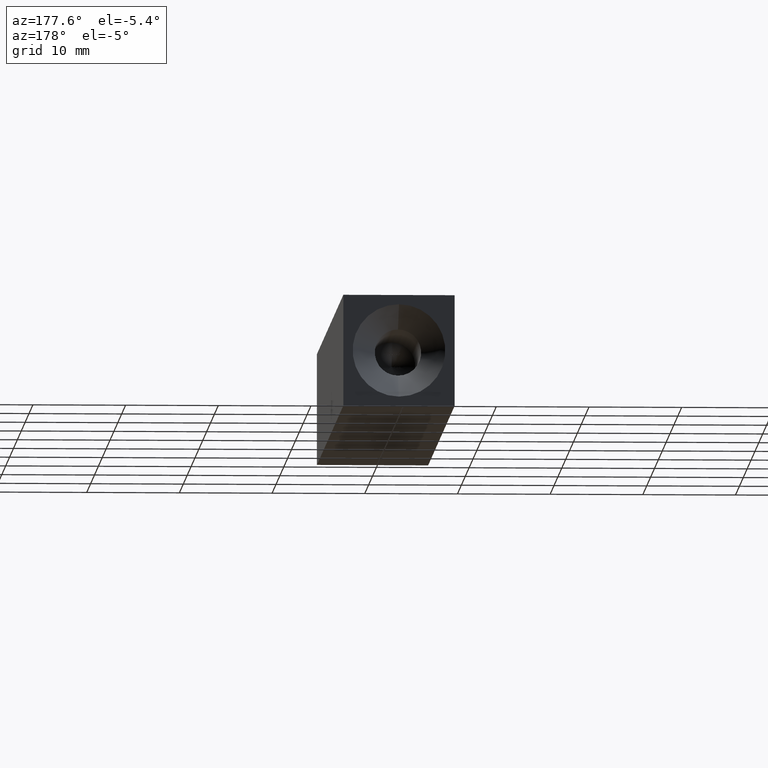
[diagram: clean part render]
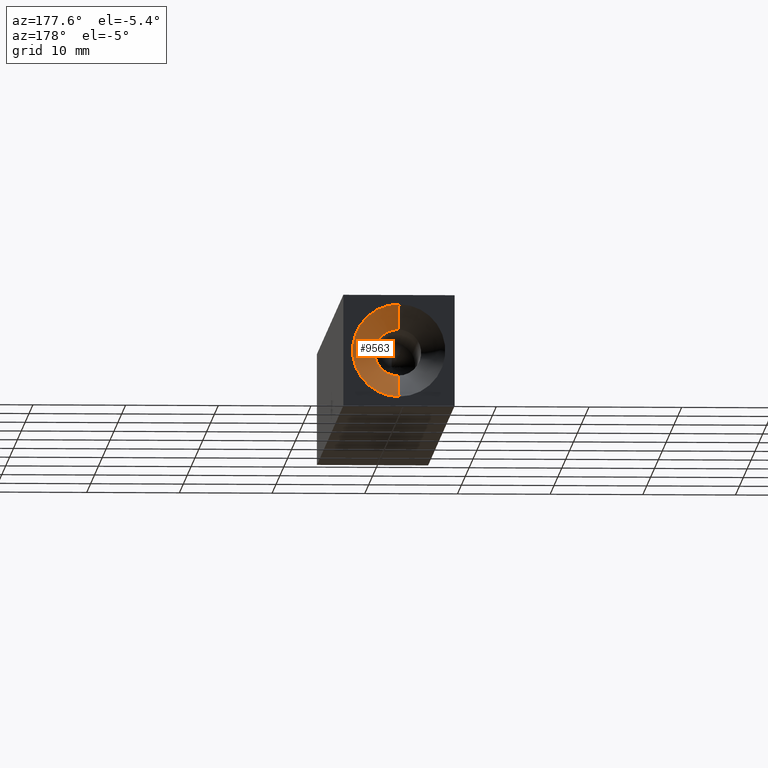
[diagram: same view with one face highlighted and labeled with its STEP entity id]
A machine part, auxiliary view. The second image highlights one B-rep face of the part: STEP entity #9563.
In plain terms, the highlighted conical surface has half-angle 45 deg.
Its self-contained STEP definition (entity closure, byte-faithful):
#258 = LINE ( 'NONE', #12046, #578 ) ;
#279 = DIRECTION ( 'NONE',  ( 0.0000000000000000000, 0.0000000000000000000, 1.000000000000000000 ) ) ;
#578 = VECTOR ( 'NONE', #8038, 1000.000000000000000 ) ;
#828 = VERTEX_POINT ( 'NONE', #6601 ) ;
#929 = ORIENTED_EDGE ( 'NONE', *, *, #8637, .T. ) ;
#1178 = CARTESIAN_POINT ( 'NONE',  ( -7.868355684521745900E-015, 65.50000000000000000, -2.499999999999997300 ) ) ;
#1594 = CIRCLE ( 'NONE', #8101, 2.499999999999997300 ) ;
#1727 = ORIENTED_EDGE ( 'NONE', *, *, #3270, .T. ) ;
#1752 = CARTESIAN_POINT ( 'NONE',  ( -8.327598234202001100E-015, 65.50000000000000000, 1.083444276309692800E-031 ) ) ;
#1777 = VERTEX_POINT ( 'NONE', #5300 ) ;
#2234 = CARTESIAN_POINT ( 'NONE',  ( -8.327598234202001100E-015, 68.00000000000000000, 1.124797111283345100E-031 ) ) ;
#3270 = EDGE_CURVE ( 'NONE', #1777, #828, #4085, .T. ) ;
#3386 = DIRECTION ( 'NONE',  ( -0.0000000000000000000, 1.000000000000000000, 1.654113398946095800E-033 ) ) ;
#4063 = VERTEX_POINT ( 'NONE', #1178 ) ;
#4085 = LINE ( 'NONE', #5806, #12601 ) ;
#4462 = EDGE_LOOP ( 'NONE', ( #7375, #6080, #1727, #929 ) ) ;
#4979 = EDGE_CURVE ( 'NONE', #4063, #10887, #258, .T. ) ;
#5050 = DIRECTION ( 'NONE',  ( 0.0000000000000000000, 0.0000000000000000000, 1.000000000000000000 ) ) ;
#5109 = CIRCLE ( 'NONE', #7332, 5.000000000000000000 ) ;
#5183 = CARTESIAN_POINT ( 'NONE',  ( -8.327598234202001100E-015, 68.00000000000000000, 1.124797111283345100E-031 ) ) ;
#5300 = CARTESIAN_POINT ( 'NONE',  ( -8.327598234202001100E-015, 65.50000000000000000, 2.499999999999997300 ) ) ;
#5806 = CARTESIAN_POINT ( 'NONE',  ( -8.327598234202001100E-015, 68.00000000000000000, 5.000000000000000000 ) ) ;
#6080 = ORIENTED_EDGE ( 'NONE', *, *, #6967, .F. ) ;
#6407 = AXIS2_PLACEMENT_3D ( 'NONE', #2234, #3386, #279 ) ;
#6601 = CARTESIAN_POINT ( 'NONE',  ( -8.327598234202001100E-015, 68.00000000000000000, 5.000000000000000000 ) ) ;
#6967 = EDGE_CURVE ( 'NONE', #1777, #4063, #1594, .T. ) ;
#7332 = AXIS2_PLACEMENT_3D ( 'NONE', #5183, #11204, #5050 ) ;
#7375 = ORIENTED_EDGE ( 'NONE', *, *, #4979, .F. ) ;
#7812 = DIRECTION ( 'NONE',  ( 0.0000000000000000000, 0.0000000000000000000, 1.000000000000000000 ) ) ;
#8027 = CONICAL_SURFACE ( 'NONE', #6407, 5.000000000000000000, 0.7853981633974483900 ) ;
#8038 = DIRECTION ( 'NONE',  ( 8.659560562354934100E-017, 0.7071067811865474600, -0.7071067811865475700 ) ) ;
#8101 = AXIS2_PLACEMENT_3D ( 'NONE', #1752, #10706, #7812 ) ;
#8346 = FACE_OUTER_BOUND ( 'NONE', #4462, .T. ) ;
#8637 = EDGE_CURVE ( 'NONE', #828, #10887, #5109, .T. ) ;
#9563 = ADVANCED_FACE ( 'NONE', ( #8346 ), #8027, .F. ) ;
#10052 = DIRECTION ( 'NONE',  ( 0.0000000000000000000, 0.7071067811865474600, 0.7071067811865475700 ) ) ;
#10706 = DIRECTION ( 'NONE',  ( -0.0000000000000000000, 1.000000000000000000, 1.654113398946095800E-033 ) ) ;
#10887 = VERTEX_POINT ( 'NONE', #12781 ) ;
#11204 = DIRECTION ( 'NONE',  ( -0.0000000000000000000, 1.000000000000000000, 1.654113398946095800E-033 ) ) ;
#12046 = CARTESIAN_POINT ( 'NONE',  ( -7.715274834628325400E-015, 68.00000000000000000, -5.000000000000000000 ) ) ;
#12601 = VECTOR ( 'NONE', #10052, 1000.000000000000000 ) ;
#12781 = CARTESIAN_POINT ( 'NONE',  ( -7.715274834628325400E-015, 68.00000000000000000, -5.000000000000000000 ) ) ;